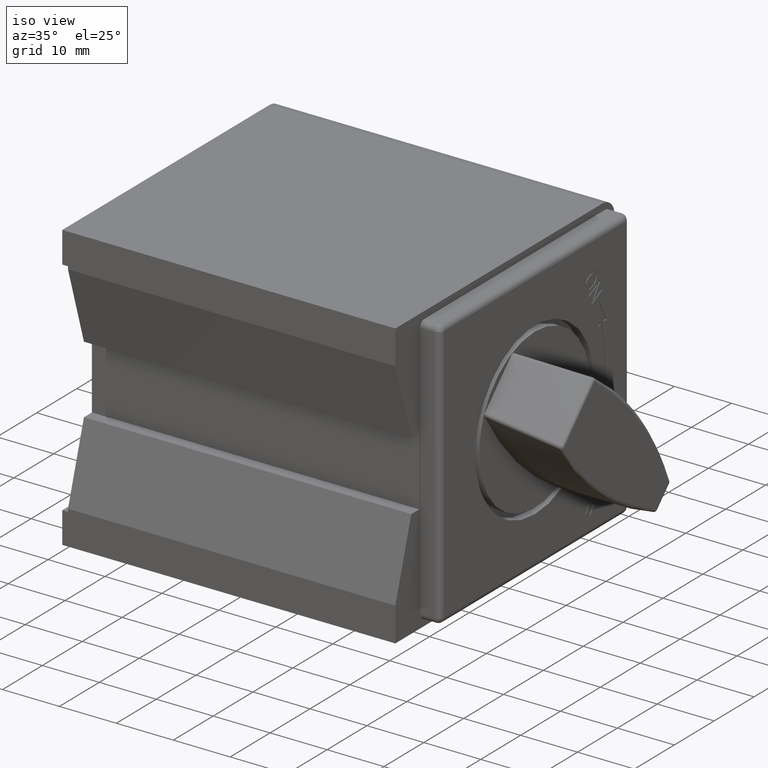
[diagram: clean part render]
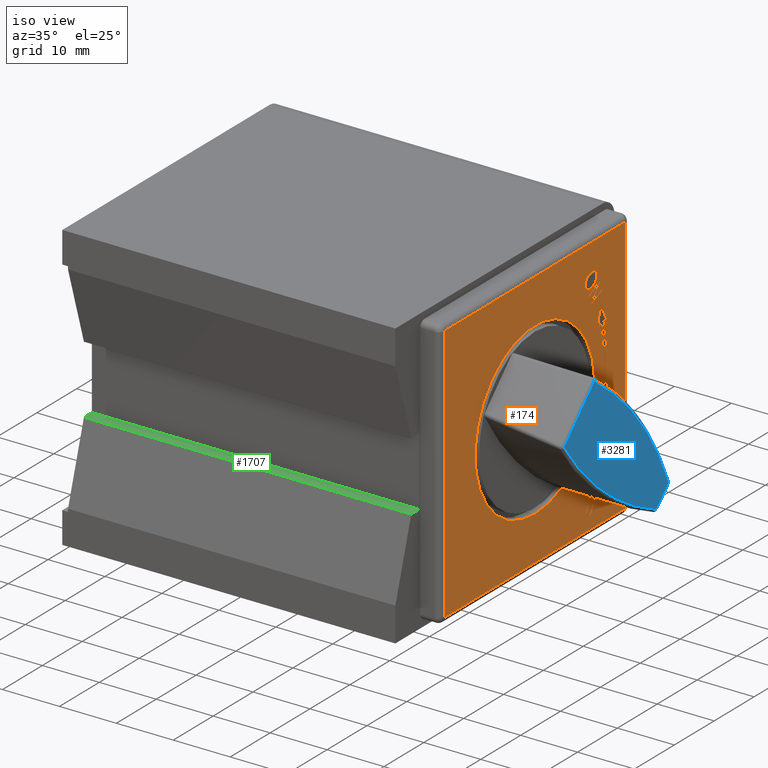
[diagram: same view with three faces highlighted in distinct colors, each labeled with its STEP entity id]
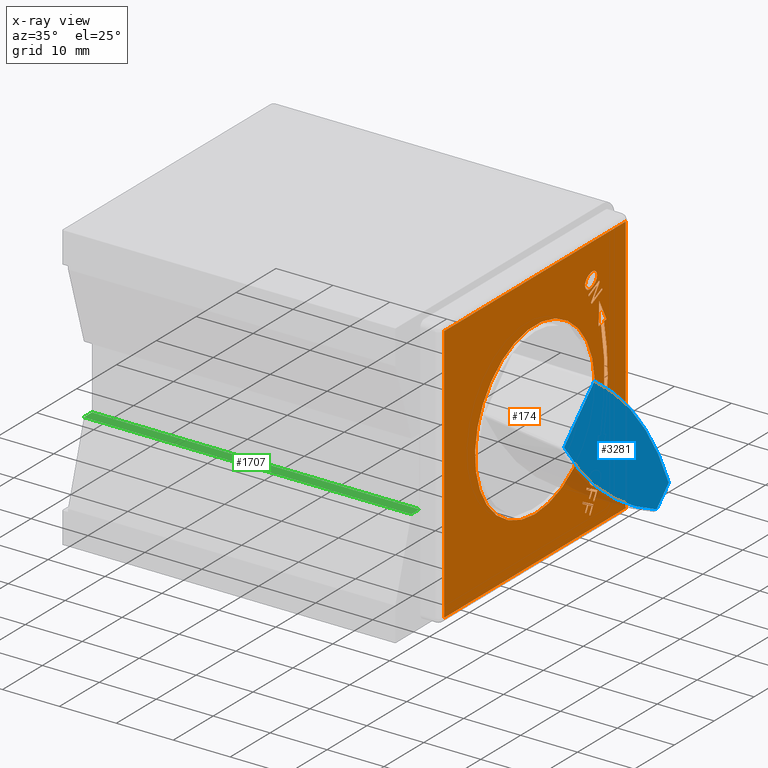
[diagram: x-ray of the same camera — body ghosted, the three highlighted faces saturated]
A machine part, iso view with three faces highlighted in distinct colors.
The next image is the same camera in x-ray (body ghosted, the three faces saturated) — at least one of them is partly hidden behind the body in this view.
Their STEP definitions:

[orange] entity #174 — the highlighted planar face has unit normal (1, 0, -0).
#9 = ORIENTED_EDGE ( 'NONE', *, *, #822, .T. ) ;
#15 = LINE ( 'NONE', #2682, #1571 ) ;
#21 = CARTESIAN_POINT ( 'NONE',  ( 32.75000000000000711, 19.07127303118679507, 8.836246859754483651 ) ) ;
#23 = EDGE_CURVE ( 'NONE', #1576, #2026, #4286, .T. ) ;
#26 = LINE ( 'NONE', #1946, #1782 ) ;
#92 = VECTOR ( 'NONE', #2271, 1000.000000000000114 ) ;
#102 = CARTESIAN_POINT ( 'NONE',  ( 32.75000000000001421, 15.22365268726104581, 17.03314405717042845 ) ) ;
#117 = PLANE ( 'NONE',  #4706 ) ;
#127 = CARTESIAN_POINT ( 'NONE',  ( 32.74999999999995737, 16.94942189594827298, 15.59500652271484533 ) ) ;
#133 = VERTEX_POINT ( 'NONE', #3232 ) ;
#134 = CARTESIAN_POINT ( 'NONE',  ( 32.75000000000000711, 17.07473961681739283, -16.09429775203857815 ) ) ;
#136 = VECTOR ( 'NONE', #224, 1000.000000000000114 ) ;
#173 = CARTESIAN_POINT ( 'NONE',  ( 32.75000000000000711, 15.18520206071041301, 16.07511658851158742 ) ) ;
#174 = ADVANCED_FACE ( 'NONE', ( #890, #4380, #2043, #2992, #4937, #2893, #4038, #4059 ), #117, .T. ) ;
#175 = CARTESIAN_POINT ( 'NONE',  ( 32.75000000000000711, 18.48438447074651947, -8.711499845263839248 ) ) ;
#180 = CARTESIAN_POINT ( 'NONE',  ( 32.74999999999997158, 18.62861940056103549, -16.18677945810846097 ) ) ;
#188 = LINE ( 'NONE', #1753, #4501 ) ;
#197 = CARTESIAN_POINT ( 'NONE',  ( 32.75000000000000711, 20.44067967221413085, 9.127323226899337172 ) ) ;
#204 = CARTESIAN_POINT ( 'NONE',  ( 32.75000000000000711, 25.24999999999999645, 22.75000000000000355 ) ) ;
#206 = VERTEX_POINT ( 'NONE', #4072 ) ;
#207 = CARTESIAN_POINT ( 'NONE',  ( 32.75000000000000711, 18.63707842668865666, 15.93190117401046102 ) ) ;
#210 = CARTESIAN_POINT ( 'NONE',  ( 32.74999999999990763, 16.57520804880973486, -15.74623408410115033 ) ) ;
#224 = DIRECTION ( 'NONE',  ( 0.000000000000000000, -0.4456328685321734318, -0.8952158100054905532 ) ) ;
#225 = ORIENTED_EDGE ( 'NONE', *, *, #3231, .T. ) ;
#227 = CARTESIAN_POINT ( 'NONE',  ( 32.74999999999997158, 16.80148988799568599, 15.54197758061284773 ) ) ;
#240 = ORIENTED_EDGE ( 'NONE', *, *, #1325, .T. ) ;
#243 = VECTOR ( 'NONE', #1652, 1000.000000000000114 ) ;
#249 = VERTEX_POINT ( 'NONE', #1004 ) ;
#254 = CARTESIAN_POINT ( 'NONE',  ( 32.75000000000000711, 16.36236963634103958, -17.90056595621777547 ) ) ;
#264 = VERTEX_POINT ( 'NONE', #3697 ) ;
#271 = VERTEX_POINT ( 'NONE', #3670 ) ;
#272 = CARTESIAN_POINT ( 'NONE',  ( 32.74999999999998579, 16.16062368423702722, -15.06575837576326471 ) ) ;
#275 = EDGE_CURVE ( 'NONE', #1211, #2883, #3153, .T. ) ;
#283 = VERTEX_POINT ( 'NONE', #648 ) ;
#287 = CARTESIAN_POINT ( 'NONE',  ( 32.75000000000000711, 20.44067967221413440, -9.127323226899344277 ) ) ;
#296 = CARTESIAN_POINT ( 'NONE',  ( 32.75000000000000711, 18.99965844798622783, -15.78747957022039472 ) ) ;
#297 = LINE ( 'NONE', #4573, #663 ) ;
#301 = ORIENTED_EDGE ( 'NONE', *, *, #23, .T. ) ;
#304 = CARTESIAN_POINT ( 'NONE',  ( 32.74999999999995737, 17.52155836444078219, 17.89943878399295585 ) ) ;
#308 = ORIENTED_EDGE ( 'NONE', *, *, #747, .T. ) ;
#314 = CARTESIAN_POINT ( 'NONE',  ( 32.75000000000000711, 19.07127303118679862, 8.836246859754483651 ) ) ;
#318 = CARTESIAN_POINT ( 'NONE',  ( 32.75000000000000711, 17.08995877266155006, -13.77794223255805939 ) ) ;
#329 = CARTESIAN_POINT ( 'NONE',  ( 32.74999999999997158, 16.23144534054584653, 17.86460093884930345 ) ) ;
#336 = ORIENTED_EDGE ( 'NONE', *, *, #4315, .F. ) ;
#339 = CARTESIAN_POINT ( 'NONE',  ( 32.75000000000001421, 16.01869336690451817, 17.76748061094893671 ) ) ;
#349 = VECTOR ( 'NONE', #3323, 1000.000000000000000 ) ;
#355 = CARTESIAN_POINT ( 'NONE',  ( 32.74999999999997868, 17.97953827437243746, -16.35304476518964378 ) ) ;
#375 = CARTESIAN_POINT ( 'NONE',  ( 32.74999999999993605, 17.72592333398952036, 16.08618440817487638 ) ) ;
#385 = CARTESIAN_POINT ( 'NONE',  ( 32.74999999999997868, 17.22014887089494906, -13.76444247780191965 ) ) ;
#389 = CARTESIAN_POINT ( 'NONE',  ( 32.75000000000000711, 25.24999999999999645, -5.001481684947869569E-15 ) ) ;
#390 = ORIENTED_EDGE ( 'NONE', *, *, #456, .T. ) ;
#400 = LINE ( 'NONE', #5045, #1636 ) ;
#412 = CARTESIAN_POINT ( 'NONE',  ( 32.75000000000000711, 16.25960162980440771, -14.32826690788273361 ) ) ;
#418 = CARTESIAN_POINT ( 'NONE',  ( 32.75000000000001421, 15.58187673159786968, 17.48354382861877454 ) ) ;
#429 = CARTESIAN_POINT ( 'NONE',  ( 32.74999999999992184, 16.70305170731575117, -13.88489431929517792 ) ) ;
#430 = ORIENTED_EDGE ( 'NONE', *, *, #4192, .T. ) ;
#436 = LINE ( 'NONE', #4736, #3351 ) ;
#443 = CARTESIAN_POINT ( 'NONE',  ( 32.75000000000000711, 15.91645219255773824, -18.73912128145343914 ) ) ;
#445 = CARTESIAN_POINT ( 'NONE',  ( 32.75000000000000711, 15.60354634840189547, -18.57292809963525571 ) ) ;
#452 = CARTESIAN_POINT ( 'NONE',  ( 32.75000000000001421, 15.16775519151560836, 16.11614796042911379 ) ) ;
#453 = LINE ( 'NONE', #4321, #3124 ) ;
#456 = EDGE_CURVE ( 'NONE', #4157, #2418, #1198, .T. ) ;
#476 = VECTOR ( 'NONE', #1439, 1000.000000000000114 ) ;
#484 = VECTOR ( 'NONE', #601, 1000.000000000000227 ) ;
#491 = EDGE_CURVE ( 'NONE', #4859, #1434, #453, .T. ) ;
#505 = LINE ( 'NONE', #1726, #484 ) ;
#508 = LINE ( 'NONE', #1348, #349 ) ;
#520 = DIRECTION ( 'NONE',  ( 0.000000000000000000, 0.4691663488491105150, 0.8831098103336836314 ) ) ;
#529 = VERTEX_POINT ( 'NONE', #4460 ) ;
#538 = CARTESIAN_POINT ( 'NONE',  ( 32.75000000000003553, 15.84392871465476915, 15.50483212721571569 ) ) ;
#540 = CARTESIAN_POINT ( 'NONE',  ( 32.74999999999995737, 16.02135072375297753, 15.46856531713889638 ) ) ;
#542 = CARTESIAN_POINT ( 'NONE',  ( 32.75000000000000711, 16.03642907603930468, 14.37285084933513346 ) ) ;
#549 = EDGE_CURVE ( 'NONE', #3647, #3647, #2864, .T. ) ;
#566 = CARTESIAN_POINT ( 'NONE',  ( 32.75000000000000711, 15.90371803707826892, 14.65775344673773262 ) ) ;
#571 = VECTOR ( 'NONE', #2817, 999.9999999999998863 ) ;
#592 = CARTESIAN_POINT ( 'NONE',  ( 32.74999999999995737, 16.51484233521297540, 15.47161842076568661 ) ) ;
#595 = DIRECTION ( 'NONE',  ( 0.000000000000000000, 0.8829475463178224626, -0.4694716503169671373 ) ) ;
#596 = ORIENTED_EDGE ( 'NONE', *, *, #3675, .T. ) ;
#601 = DIRECTION ( 'NONE',  ( 0.000000000000000000, 0.9063801113541216647, 0.4224631270793818283 ) ) ;
#612 = CARTESIAN_POINT ( 'NONE',  ( 32.75000000000000711, 15.38773489608129807, -16.07548478738661046 ) ) ;
#616 = CARTESIAN_POINT ( 'NONE',  ( 32.74999999999995737, 17.04688427261557493, 15.63877280036407669 ) ) ;
#621 = CARTESIAN_POINT ( 'NONE',  ( 32.74999999999997868, 18.24571478507821354, -16.33213010479392580 ) ) ;
#624 = EDGE_LOOP ( 'NONE', ( #3912, #4021, #1822, #4271, #3192, #969, #2431, #3147, #430, #301 ) ) ;
#648 = CARTESIAN_POINT ( 'NONE',  ( 32.75000000000000711, 17.09897677919818193, -18.49593933284115366 ) ) ;
#651 = DIRECTION ( 'NONE',  ( 0.000000000000000000, 0.9781476007338065770, -0.2079116908177548739 ) ) ;
#663 = VECTOR ( 'NONE', #651, 1000.000000000000114 ) ;
#668 = VECTOR ( 'NONE', #2104, 1000.000000000000114 ) ;
#675 = CARTESIAN_POINT ( 'NONE',  ( 32.75000000000000711, 18.18988587010727898, -17.19683218998401486 ) ) ;
#689 = CARTESIAN_POINT ( 'NONE',  ( 32.74999999999999289, 16.20203724800686729, -14.44564203663153279 ) ) ;
#700 = DIRECTION ( 'NONE',  ( 0.000000000000000000, 0.4695199025468768106, 0.8829218884546758961 ) ) ;
#701 = VERTEX_POINT ( 'NONE', #3359 ) ;
#709 = CARTESIAN_POINT ( 'NONE',  ( 32.75000000000000711, 18.14738572071349765, -13.99892437541520174 ) ) ;
#718 = VERTEX_POINT ( 'NONE', #3445 ) ;
#720 = EDGE_CURVE ( 'NONE', #3504, #249, #4889, .T. ) ;
#723 = VERTEX_POINT ( 'NONE', #5016 ) ;
#724 = EDGE_CURVE ( 'NONE', #2672, #2221, #1499, .T. ) ;
#747 = EDGE_CURVE ( 'NONE', #2829, #723, #4095, .T. ) ;
#772 = CARTESIAN_POINT ( 'NONE',  ( 32.75000000000000711, 17.61574996940841942, -13.79967036143425041 ) ) ;
#776 = LINE ( 'NONE', #4330, #2051 ) ;
#780 = EDGE_CURVE ( 'NONE', #283, #1725, #975, .T. ) ;
#781 = B_SPLINE_CURVE_WITH_KNOTS ( 'NONE', 3,
 ( #4701, #3440, #5012, #3473, #4619, #418, #1978, #1275, #3167, #339, #4287 ),
 .UNSPECIFIED., .F., .F.,
 ( 4, 1, 1, 1, 1, 1, 1, 1, 4 ),
 ( 0.000000000000000000, 0.0001321316597401639068, 0.0002646160130339305044, 0.0003981304015859542808, 0.0005328200798468814238, 0.0006712683424282005250, 0.0008129068784468252221, 0.0009586434091617796697, 0.001109504278435694078 ),
 .UNSPECIFIED. ) ;
#797 = CARTESIAN_POINT ( 'NONE',  ( 32.75000000000000711, 18.01413874902209855, 17.39187795214795074 ) ) ;
#800 = ORIENTED_EDGE ( 'NONE', *, *, #844, .T. ) ;
#811 = CARTESIAN_POINT ( 'NONE',  ( 32.74999999999995026, 17.13279654331848434, 15.67850741541281323 ) ) ;
#817 = LINE ( 'NONE', #2373, #571 ) ;
#818 = EDGE_CURVE ( 'NONE', #976, #3129, #4952, .T. ) ;
#822 = EDGE_CURVE ( 'NONE', #723, #4995, #2145, .T. ) ;
#824 = DIRECTION ( 'NONE',  ( -1.460819769243627131E-16, 0.000000000000000000, -1.000000000000000000 ) ) ;
#829 = VECTOR ( 'NONE', #4776, 1000.000000000000114 ) ;
#830 = EDGE_CURVE ( 'NONE', #2202, #1058, #2590, .T. ) ;
#839 = CARTESIAN_POINT ( 'NONE',  ( 32.74999999999991473, 16.32461576325148656, -14.21415022869926759 ) ) ;
#844 = EDGE_CURVE ( 'NONE', #3176, #2278, #4596, .T. ) ;
#884 = CARTESIAN_POINT ( 'NONE',  ( 32.75000000000000711, 16.11125738736293300, -20.35356933340148800 ) ) ;
#890 = FACE_OUTER_BOUND ( 'NONE', #4503, .T. ) ;
#895 = ORIENTED_EDGE ( 'NONE', *, *, #2165, .T. ) ;
#896 = CIRCLE ( 'NONE', #4170, 42.49999999999999289 ) ;
#897 = VERTEX_POINT ( 'NONE', #3933 ) ;
#909 = B_SPLINE_CURVE_WITH_KNOTS ( 'NONE', 3,
 ( #2535, #1668, #538, #4027, #4412, #2147, #3310, #951, #2098, #3717, #173 ),
 .UNSPECIFIED., .F., .F.,
 ( 4, 1, 1, 1, 1, 1, 1, 1, 4 ),
 ( 0.000000000000000000, 0.0001402062494030924494, 0.0002739615361866799912, 0.0004021298279870700590, 0.0005278864595012580955, 0.0006522277015732204320, 0.0007777242548058125541, 0.0009063810633173558558, 0.001039522164773550245 ),
 .UNSPECIFIED. ) ;
#933 = CARTESIAN_POINT ( 'NONE',  ( 32.75000000000000711, 16.36236963634103958, -17.90056595621777547 ) ) ;
#951 = CARTESIAN_POINT ( 'NONE',  ( 32.75000000000002132, 15.31835154637944463, 15.85216574770536013 ) ) ;
#957 = CARTESIAN_POINT ( 'NONE',  ( 32.74999999999999289, 18.96054330686108358, -15.85718290544822473 ) ) ;
#967 = VERTEX_POINT ( 'NONE', #2579 ) ;
#969 = ORIENTED_EDGE ( 'NONE', *, *, #4122, .T. ) ;
#975 = LINE ( 'NONE', #1821, #4151 ) ;
#976 = VERTEX_POINT ( 'NONE', #4943 ) ;
#984 = CARTESIAN_POINT ( 'NONE',  ( 32.74999999999997868, 18.32837392744010430, -16.31407201240590865 ) ) ;
#985 = EDGE_CURVE ( 'NONE', #967, #1260, #1751, .T. ) ;
#993 = ORIENTED_EDGE ( 'NONE', *, *, #720, .T. ) ;
#1000 = DIRECTION ( 'NONE',  ( 0.000000000000000000, -0.9781476007338065770, -0.2079116908177548739 ) ) ;
#1004 = CARTESIAN_POINT ( 'NONE',  ( 32.75000000000000711, 15.54053522075662563, -15.78814712504894580 ) ) ;
#1006 = B_SPLINE_CURVE_WITH_KNOTS ( 'NONE', 3,
 ( #134, #3728, #4853, #2447, #3229, #210, #4492, #1749, #1368, #4398, #3636 ),
 .UNSPECIFIED., .F., .F.,
 ( 4, 1, 1, 1, 1, 1, 1, 1, 4 ),
 ( 0.000000000000000000, 0.0001632645642404131415, 0.0003195072304829477388, 0.0004692423434184236669, 0.0006126814239836901816, 0.0007515197102200611191, 0.0008862562102475983906, 0.001018323458412880586, 0.001148481384523565357 ),
 .UNSPECIFIED. ) ;
#1010 = CARTESIAN_POINT ( 'NONE',  ( 32.74999999999994316, 18.97364483664771484, -14.72773318822674327 ) ) ;
#1013 = CARTESIAN_POINT ( 'NONE',  ( 32.75000000000000711, 15.06174440034994610, -19.59200277495992992 ) ) ;
#1040 = DIRECTION ( 'NONE',  ( 1.000000000000000000, 1.066997199106502070E-32, -1.460819769243627131E-16 ) ) ;
#1058 = VERTEX_POINT ( 'NONE', #4786 ) ;
#1061 = VERTEX_POINT ( 'NONE', #3203 ) ;
#1066 = AXIS2_PLACEMENT_3D ( 'NONE', #4003, #3694, #2903 ) ;
#1094 = CARTESIAN_POINT ( 'NONE',  ( 32.75000000000001421, 15.97842446330781385, 15.47548184825184414 ) ) ;
#1096 = CARTESIAN_POINT ( 'NONE',  ( 32.74999999999994316, 18.81038620342441092, -14.49739504905537579 ) ) ;
#1106 = VERTEX_POINT ( 'NONE', #204 ) ;
#1124 = CARTESIAN_POINT ( 'NONE',  ( 32.74999999999997868, 17.69099997546396352, -16.32416794542055882 ) ) ;
#1125 = CARTESIAN_POINT ( 'NONE',  ( 32.75000000000000711, 14.40001550424604915, -17.93311478794694480 ) ) ;
#1138 = CARTESIAN_POINT ( 'NONE',  ( 32.75000000000000711, 16.04946379218519681, -17.73437277439959558 ) ) ;
#1142 = ORIENTED_EDGE ( 'NONE', *, *, #3573, .T. ) ;
#1152 = CARTESIAN_POINT ( 'NONE',  ( 32.75000000000000000, 18.01569776686307733, -13.93221045723192653 ) ) ;
#1156 = VECTOR ( 'NONE', #4717, 1000.000000000000000 ) ;
#1162 = VECTOR ( 'NONE', #1964, 1000.000000000000227 ) ;
#1174 = CARTESIAN_POINT ( 'NONE',  ( 32.74999999999994316, 18.06085802413406682, 16.61258456008574314 ) ) ;
#1180 = CARTESIAN_POINT ( 'NONE',  ( 32.75000000000000711, -20.25000000000000000, 22.74999999999999645 ) ) ;
#1187 = EDGE_CURVE ( 'NONE', #1760, #4928, #1273, .T. ) ;
#1198 = B_SPLINE_CURVE_WITH_KNOTS ( 'NONE', 3,
 ( #3891, #5047, #839, #1531, #2740, #5073, #429, #1603, #3101, #1988, #3563 ),
 .UNSPECIFIED., .F., .F.,
 ( 4, 1, 1, 1, 1, 1, 1, 1, 4 ),
 ( 0.000000000000000000, 0.0001334274789124109033, 0.0002613294352321554690, 0.0003869884717753711042, 0.0005116897148188392789, 0.0006372775042945722510, 0.0007662248556591561878, 0.0009009415860903956632, 0.001042198708322209953 ),
 .UNSPECIFIED. ) ;
#1199 = CARTESIAN_POINT ( 'NONE',  ( 32.74999999999993605, 18.11527800077454486, 16.93198999463615451 ) ) ;
#1200 = CARTESIAN_POINT ( 'NONE',  ( 32.75000000000002132, 15.08310695466656171, 16.57313279184252863 ) ) ;
#1211 = VERTEX_POINT ( 'NONE', #2662 ) ;
#1218 = EDGE_LOOP ( 'NONE', ( #5068, #4244, #390, #3421, #1484, #3340 ) ) ;
#1223 = VERTEX_POINT ( 'NONE', #3020 ) ;
#1229 = CARTESIAN_POINT ( 'NONE',  ( 32.75000000000000711, 17.20216647827202294, -19.05446219054434565 ) ) ;
#1255 = LINE ( 'NONE', #389, #2723 ) ;
#1260 = VERTEX_POINT ( 'NONE', #1915 ) ;
#1268 = EDGE_CURVE ( 'NONE', #2146, #1760, #3122, .T. ) ;
#1269 = LINE ( 'NONE', #3264, #4823 ) ;
#1273 = B_SPLINE_CURVE_WITH_KNOTS ( 'NONE', 3,
 ( #2491, #4031, #957, #2514, #3265, #4076, #2131, #1316, #180, #1745, #4873, #1363, #984, #621, #4634, #3426, #355, #3751, #5049, #1124, #3459, #2685, #3870, #4545, #4993, #1831, #2210 ),
 .UNSPECIFIED., .F., .F.,
 ( 4, 1, 1, 1, 1, 1, 1, 1, 1, 1, 1, 1, 1, 1, 1, 1, 1, 1, 1, 1, 1, 1, 1, 1, 4 ),
 ( 0.000000000000000000, 8.060086409993888067E-05, 0.0001603635843737375875, 0.0002391059044681442152, 0.0003174764817184140401, 0.0003954327327244877240, 0.0004738916390875284965, 0.0005536543593613301849, 0.0006344825103246308756, 0.0007163233541527943768, 0.0007988248585185157803, 0.0008818713959506287300, 0.0009670873706862845570, 0.001053708655732523824, 0.001143344102423403874, 0.001235133979415568850, 0.001330046119243974813, 0.001427217297627121888, 0.001527005972362422900, 0.001629279346650085994, 0.001734843840984218698, 0.001843394883603306344, 0.001955427078413884360, 0.002070986220045944060, 0.002191117080232785497 ),
 .UNSPECIFIED. ) ;
#1275 = CARTESIAN_POINT ( 'NONE',  ( 32.75000000000002132, 15.80510990934532600, 17.65037590706645787 ) ) ;
#1277 = ORIENTED_EDGE ( 'NONE', *, *, #1424, .T. ) ;
#1279 = EDGE_CURVE ( 'NONE', #2221, #1106, #2419, .T. ) ;
#1290 = CARTESIAN_POINT ( 'NONE',  ( 32.74999999999995737, 16.37626585305596194, 15.45323829657355930 ) ) ;
#1305 = CARTESIAN_POINT ( 'NONE',  ( 32.75000000000000711, 16.59126574023714440, -16.71529809907491781 ) ) ;
#1315 = VECTOR ( 'NONE', #4382, 1000.000000000000000 ) ;
#1316 = CARTESIAN_POINT ( 'NONE',  ( 32.74999999999997868, 18.69420120930813667, -16.14209559747676437 ) ) ;
#1325 = EDGE_CURVE ( 'NONE', #2543, #3246, #1605, .T. ) ;
#1335 = DIRECTION ( 'NONE',  ( 0.000000000000000000, -0.8829826821614165100, 0.4694055634555591716 ) ) ;
#1348 = CARTESIAN_POINT ( 'NONE',  ( 32.75000000000000711, 16.90417158439298717, -16.88149128089309770 ) ) ;
#1359 = CARTESIAN_POINT ( 'NONE',  ( 32.75000000000001421, 17.09672803473638680, 15.66115554955054634 ) ) ;
#1363 = CARTESIAN_POINT ( 'NONE',  ( 32.74999999999998579, 18.40807345864932643, -16.29006837817549425 ) ) ;
#1368 = CARTESIAN_POINT ( 'NONE',  ( 32.74999999999990052, 16.31790378005977971, -15.43263626947996592 ) ) ;
#1378 = CARTESIAN_POINT ( 'NONE',  ( 32.75000000000000711, 18.65649881893148532, -12.71149984526383747 ) ) ;
#1424 = EDGE_CURVE ( 'NONE', #2883, #1223, #909, .T. ) ;
#1434 = VERTEX_POINT ( 'NONE', #197 ) ;
#1439 = DIRECTION ( 'NONE',  ( 0.000000000000000000, -0.04298880943380564701, 0.9990755538313726980 ) ) ;
#1444 = CARTESIAN_POINT ( 'NONE',  ( 32.74999999999996447, 18.09166295620847009, 17.16621097889631287 ) ) ;
#1455 = CARTESIAN_POINT ( 'NONE',  ( 32.74999999999998579, 16.13762457901254521, -14.69046969649313183 ) ) ;
#1464 = CARTESIAN_POINT ( 'NONE',  ( 32.75000000000000711, 20.44067967221413440, -9.127323226899344277 ) ) ;
#1484 = ORIENTED_EDGE ( 'NONE', *, *, #1268, .T. ) ;
#1485 = CARTESIAN_POINT ( 'NONE',  ( 32.75000000000000711, 16.58492745266267931, 13.19610571946500421 ) ) ;
#1486 = CARTESIAN_POINT ( 'NONE',  ( 32.74999999999995737, 17.81290684857451012, 17.69150327490497787 ) ) ;
#1497 = CARTESIAN_POINT ( 'NONE',  ( 32.75000000000000711, 16.03642907603930468, 14.37285084933513346 ) ) ;
#1499 = LINE ( 'NONE', #4478, #3994 ) ;
#1503 = CARTESIAN_POINT ( 'NONE',  ( 32.74999999999994316, 17.65365938201646401, 16.01692194667126756 ) ) ;
#1510 = EDGE_CURVE ( 'NONE', #897, #2829, #3288, .T. ) ;
#1525 = ORIENTED_EDGE ( 'NONE', *, *, #2545, .T. ) ;
#1531 = CARTESIAN_POINT ( 'NONE',  ( 32.74999999999992895, 16.40463358197690980, -14.11292881090803775 ) ) ;
#1558 = CARTESIAN_POINT ( 'NONE',  ( 32.75000000000000711, 17.07473961681739283, -16.09429775203857815 ) ) ;
#1562 = VECTOR ( 'NONE', #520, 1000.000000000000000 ) ;
#1565 = EDGE_CURVE ( 'NONE', #2639, #3504, #2486, .T. ) ;
#1571 = VECTOR ( 'NONE', #3866, 1000.000000000000227 ) ;
#1576 = VERTEX_POINT ( 'NONE', #2123 ) ;
#1579 = CARTESIAN_POINT ( 'NONE',  ( 32.74999999999994316, 18.10978836842620510, 16.85246615694335759 ) ) ;
#1581 = DIRECTION ( 'NONE',  ( 0.000000000000000000, 0.4456328685321734318, -0.8952158100054905532 ) ) ;
#1594 = DIRECTION ( 'NONE',  ( 0.000000000000000000, 0.4694380128282588660, 0.8829654308702326038 ) ) ;
#1603 = CARTESIAN_POINT ( 'NONE',  ( 32.74999999999992895, 16.82318579261311697, -13.83612275359513966 ) ) ;
#1605 = LINE ( 'NONE', #3130, #1162 ) ;
#1636 = VECTOR ( 'NONE', #3532, 1000.000000000000000 ) ;
#1646 = CARTESIAN_POINT ( 'NONE',  ( 32.75000000000000711, 15.18520206071041301, 16.07511658851158742 ) ) ;
#1652 = DIRECTION ( 'NONE',  ( 0.000000000000000000, 0.4695199025468770326, 0.8829218884546757851 ) ) ;
#1654 = DIRECTION ( 'NONE',  ( -1.632680918566407040E-16, 0.000000000000000000, -1.000000000000000000 ) ) ;
#1663 = VERTEX_POINT ( 'NONE', #4538 ) ;
#1668 = CARTESIAN_POINT ( 'NONE',  ( 32.75000000000003553, 15.93289425759070177, 15.48541765850951357 ) ) ;
#1676 = DIRECTION ( 'NONE',  ( -1.460819769243627131E-16, 0.000000000000000000, -1.000000000000000000 ) ) ;
#1704 = VECTOR ( 'NONE', #4011, 999.9999999999998863 ) ;
#1723 = CARTESIAN_POINT ( 'NONE',  ( 32.75000000000000711, 15.37465024450579065, -19.75819595677811336 ) ) ;
#1725 = VERTEX_POINT ( 'NONE', #2705 ) ;
#1726 = CARTESIAN_POINT ( 'NONE',  ( 32.75000000000000711, 17.18212712798735708, 13.44935247271176060 ) ) ;
#1745 = CARTESIAN_POINT ( 'NONE',  ( 32.74999999999998579, 18.55843415151521114, -16.22617421949849614 ) ) ;
#1749 = CARTESIAN_POINT ( 'NONE',  ( 32.74999999999990763, 16.39324382387744805, -15.54154418034084806 ) ) ;
#1751 = B_SPLINE_CURVE_WITH_KNOTS ( 'NONE', 3,
 ( #3844, #3817, #329, #2219, #1920, #3408, #2999, #4552, #2607, #3492, #4166, #304, #1865, #5001, #1486, #3061, #4613, #3988, #797 ),
 .UNSPECIFIED., .F., .F.,
 ( 4, 1, 1, 1, 1, 1, 1, 1, 1, 1, 1, 1, 1, 1, 1, 1, 4 ),
 ( 0.000000000000000000, 0.0001875444127016343064, 0.0003653702007625224987, 0.0005322997080700981806, 0.0006910288182483886399, 0.0008415451627465034149, 0.0009862372245228344034, 0.001124669560364697368, 0.001260296040201996839, 0.001391199257910908857, 0.001516796553179924336, 0.001638390771137857114, 0.001757453837195058688, 0.001874552825407854078, 0.001993126743755176816, 0.002113496866428430168, 0.002238014224916785259 ),
 .UNSPECIFIED. ) ;
#1752 = CARTESIAN_POINT ( 'NONE',  ( 32.75000000000000711, 17.18212712798735353, 13.44935247271175882 ) ) ;
#1753 = CARTESIAN_POINT ( 'NONE',  ( 32.75000000000000711, 15.37465024450579065, -19.75819595677811336 ) ) ;
#1760 = VERTEX_POINT ( 'NONE', #3558 ) ;
#1782 = VECTOR ( 'NONE', #3519, 1000.000000000000114 ) ;
#1796 = LINE ( 'NONE', #3017, #668 ) ;
#1801 = CARTESIAN_POINT ( 'NONE',  ( 32.74999999999993605, 19.05404553763640507, -15.67783537585683895 ) ) ;
#1807 = CARTESIAN_POINT ( 'NONE',  ( 32.75000000000000711, 19.45952160850684010, 14.16647909608838063 ) ) ;
#1809 = CARTESIAN_POINT ( 'NONE',  ( 32.74999999999998579, 16.23800625418181198, -15.27485542489325709 ) ) ;
#1821 = CARTESIAN_POINT ( 'NONE',  ( 32.75000000000000711, 17.09897677919818193, -18.49593933284115366 ) ) ;
#1822 = ORIENTED_EDGE ( 'NONE', *, *, #3845, .T. ) ;
#1831 = CARTESIAN_POINT ( 'NONE',  ( 32.74999999999997158, 17.11008051213288184, -16.11270505740101910 ) ) ;
#1838 = ORIENTED_EDGE ( 'NONE', *, *, #2519, .T. ) ;
#1843 = EDGE_CURVE ( 'NONE', #3457, #2122, #2759, .T. ) ;
#1864 = CARTESIAN_POINT ( 'NONE',  ( 32.74999999999997868, 16.20057723349435008, -15.19271637470313507 ) ) ;
#1865 = CARTESIAN_POINT ( 'NONE',  ( 32.74999999999997158, 17.62795816861130760, 17.83967272467997489 ) ) ;
#1868 = ORIENTED_EDGE ( 'NONE', *, *, #549, .T. ) ;
#1897 = VECTOR ( 'NONE', #2596, 1000.000000000000114 ) ;
#1915 = CARTESIAN_POINT ( 'NONE',  ( 32.75000000000000711, 18.01413874902209855, 17.39187795214795074 ) ) ;
#1920 = CARTESIAN_POINT ( 'NONE',  ( 32.74999999999996447, 16.55902976356230027, 17.97116912494028185 ) ) ;
#1938 = CARTESIAN_POINT ( 'NONE',  ( 32.75000000000000711, 14.40001550424604915, -17.93311478794694480 ) ) ;
#1941 = CARTESIAN_POINT ( 'NONE',  ( 32.74999999999998579, 17.48354696017264587, -13.77655100510992092 ) ) ;
#1946 = CARTESIAN_POINT ( 'NONE',  ( 32.75000000000000711, 16.73706907567462210, -19.17560667106382866 ) ) ;
#1947 = VERTEX_POINT ( 'NONE', #2725 ) ;
#1964 = DIRECTION ( 'NONE',  ( 0.000000000000000000, -0.5909825127212691154, -0.8066843680508845038 ) ) ;
#1976 = ORIENTED_EDGE ( 'NONE', *, *, #2939, .T. ) ;
#1978 = CARTESIAN_POINT ( 'NONE',  ( 32.75000000000001421, 15.68914805375680821, 17.56973540146622881 ) ) ;
#1986 = CARTESIAN_POINT ( 'NONE',  ( 32.74999999999993605, 17.99597468779149523, 16.45706733448834314 ) ) ;
#1987 = CARTESIAN_POINT ( 'NONE',  ( 32.75000000000000711, 15.24607868408703659, 17.07471074435574465 ) ) ;
#1988 = CARTESIAN_POINT ( 'NONE',  ( 32.74999999999992184, 17.04346412381878295, -13.78475252543875840 ) ) ;
#1990 = DIRECTION ( 'NONE',  ( 1.066997199106502070E-32, 1.000000000000000000, 1.460819769243627131E-16 ) ) ;
#2000 = LINE ( 'NONE', #1229, #4269 ) ;
#2026 = VERTEX_POINT ( 'NONE', #1723 ) ;
#2030 = EDGE_CURVE ( 'NONE', #3095, #1947, #2442, .T. ) ;
#2043 = FACE_BOUND ( 'NONE', #624, .T. ) ;
#2048 = LINE ( 'NONE', #445, #1315 ) ;
#2051 = VECTOR ( 'NONE', #2331, 1000.000000000000227 ) ;
#2055 = CARTESIAN_POINT ( 'NONE',  ( 32.75000000000001421, 15.08229158957963101, 16.44729125642667356 ) ) ;
#2058 = VECTOR ( 'NONE', #595, 1000.000000000000000 ) ;
#2073 = CARTESIAN_POINT ( 'NONE',  ( 32.75000000000001421, 15.09780569724415855, 16.69947877492450417 ) ) ;
#2098 = CARTESIAN_POINT ( 'NONE',  ( 32.75000000000004263, 15.24447986759128071, 15.95798059586885742 ) ) ;
#2104 = DIRECTION ( 'NONE',  ( 0.000000000000000000, -0.8827812917244591828, 0.4697841961808585376 ) ) ;
#2122 = VERTEX_POINT ( 'NONE', #207 ) ;
#2123 = CARTESIAN_POINT ( 'NONE',  ( 32.75000000000000711, 15.91645219255773824, -18.73912128145343914 ) ) ;
#2131 = CARTESIAN_POINT ( 'NONE',  ( 32.74999999999997868, 18.75605184143855553, -16.09395959861831926 ) ) ;
#2136 = CARTESIAN_POINT ( 'NONE',  ( 32.75000000000000711, 25.24999999999999645, -22.74999999999999289 ) ) ;
#2145 = LINE ( 'NONE', #1378, #476 ) ;
#2146 = VERTEX_POINT ( 'NONE', #3403 ) ;
#2147 = CARTESIAN_POINT ( 'NONE',  ( 32.75000000000002842, 15.49680619454830399, 15.67629669305939011 ) ) ;
#2161 = ORIENTED_EDGE ( 'NONE', *, *, #780, .T. ) ;
#2162 = EDGE_CURVE ( 'NONE', #718, #4438, #436, .T. ) ;
#2165 = EDGE_CURVE ( 'NONE', #3129, #718, #3132, .T. ) ;
#2170 = DIRECTION ( 'NONE',  ( 1.460819769243627131E-16, 0.000000000000000000, 1.000000000000000000 ) ) ;
#2180 = CARTESIAN_POINT ( 'NONE',  ( 32.74999999999994316, 19.11685024339531580, -15.44821860354824139 ) ) ;
#2193 = ORIENTED_EDGE ( 'NONE', *, *, #830, .T. ) ;
#2202 = VERTEX_POINT ( 'NONE', #21 ) ;
#2205 = CARTESIAN_POINT ( 'NONE',  ( 32.74999999999995026, 18.04685856546160139, 17.31840899690093494 ) ) ;
#2210 = CARTESIAN_POINT ( 'NONE',  ( 32.75000000000000711, 17.07473961681739283, -16.09429775203857815 ) ) ;
#2218 = CARTESIAN_POINT ( 'NONE',  ( 32.74999999999998579, 16.13718300839219921, -14.93960233048155750 ) ) ;
#2219 = CARTESIAN_POINT ( 'NONE',  ( 32.74999999999995737, 16.39812060512397096, 17.92454949424400823 ) ) ;
#2221 = VERTEX_POINT ( 'NONE', #1180 ) ;
#2240 = CARTESIAN_POINT ( 'NONE',  ( 32.74999999999995026, 19.09232039056344732, -15.56361357549655011 ) ) ;
#2245 = CARTESIAN_POINT ( 'NONE',  ( 32.74999999999999289, 16.24019460022354622, -14.36783829776922694 ) ) ;
#2252 = EDGE_CURVE ( 'NONE', #1061, #2202, #896, .T. ) ;
#2268 = CARTESIAN_POINT ( 'NONE',  ( 32.74999999999994316, 18.20182269032577338, -14.02879683422305135 ) ) ;
#2271 = DIRECTION ( 'NONE',  ( 0.000000000000000000, -0.8828781667800436050, 0.4696021109653464309 ) ) ;
#2273 = EDGE_CURVE ( 'NONE', #1434, #3723, #1269, .T. ) ;
#2278 = VERTEX_POINT ( 'NONE', #4392 ) ;
#2284 = ORIENTED_EDGE ( 'NONE', *, *, #4281, .T. ) ;
#2289 = CARTESIAN_POINT ( 'NONE',  ( 32.74999999999995026, 18.03117271988982040, 16.53445042498172413 ) ) ;
#2293 = CARTESIAN_POINT ( 'NONE',  ( 32.74999999999994316, 18.45469553228951298, -14.18448752776400212 ) ) ;
#2311 = DIRECTION ( 'NONE',  ( 0.000000000000000000, -0.4222491456258128384, 0.9064798172150723143 ) ) ;
#2326 = CARTESIAN_POINT ( 'NONE',  ( 32.75000000000000711, 18.14738572071349765, -13.99892437541520174 ) ) ;
#2331 = DIRECTION ( 'NONE',  ( 0.000000000000000000, -0.8827812917244631796, 0.4697841961808508771 ) ) ;
#2337 = CARTESIAN_POINT ( 'NONE',  ( 32.75000000000000711, 19.85379111177385525, 9.002576212408689216 ) ) ;
#2340 = EDGE_CURVE ( 'NONE', #701, #264, #4825, .T. ) ;
#2358 = DIRECTION ( 'NONE',  ( 0.000000000000000000, -0.4694380128282588660, -0.8829654308702326038 ) ) ;
#2359 = VECTOR ( 'NONE', #2952, 1000.000000000000114 ) ;
#2371 = ORIENTED_EDGE ( 'NONE', *, *, #4154, .F. ) ;
#2373 = CARTESIAN_POINT ( 'NONE',  ( 32.75000000000000711, 15.54053522075662563, -15.78814712504894580 ) ) ;
#2406 = DIRECTION ( 'NONE',  ( 0.000000000000000000, -0.4692356966560308762, -0.8830729646998198845 ) ) ;
#2418 = VERTEX_POINT ( 'NONE', #318 ) ;
#2419 = LINE ( 'NONE', #3893, #4328 ) ;
#2431 = ORIENTED_EDGE ( 'NONE', *, *, #3482, .T. ) ;
#2442 = LINE ( 'NONE', #2934, #1704 ) ;
#2447 = CARTESIAN_POINT ( 'NONE',  ( 32.74999999999989342, 16.80354213748124437, -15.93052870767466445 ) ) ;
#2454 = VECTOR ( 'NONE', #1335, 1000.000000000000000 ) ;
#2486 = LINE ( 'NONE', #4048, #2454 ) ;
#2490 = CARTESIAN_POINT ( 'NONE',  ( 32.75000000000000711, 14.55281582892137671, -17.64577712560928191 ) ) ;
#2491 = CARTESIAN_POINT ( 'NONE',  ( 32.75000000000000711, 18.99965844798622783, -15.78747957022039472 ) ) ;
#2514 = CARTESIAN_POINT ( 'NONE',  ( 32.74999999999996447, 18.91625626194689502, -15.92312344667850432 ) ) ;
#2519 = EDGE_CURVE ( 'NONE', #1260, #1211, #4399, .T. ) ;
#2520 = VECTOR ( 'NONE', #4877, 1000.000000000000000 ) ;
#2534 = EDGE_LOOP ( 'NONE', ( #4707, #3325, #4227, #596, #4090, #1525, #240, #2284, #4316, #895 ) ) ;
#2535 = CARTESIAN_POINT ( 'NONE',  ( 32.75000000000001421, 15.97842446330781385, 15.47548184825184414 ) ) ;
#2543 = VERTEX_POINT ( 'NONE', #5069 ) ;
#2545 = EDGE_CURVE ( 'NONE', #2122, #2543, #400, .T. ) ;
#2548 = LINE ( 'NONE', #4852, #4091 ) ;
#2572 = CARTESIAN_POINT ( 'NONE',  ( 32.74999999999993605, 19.03155016764879903, -14.84906074778987950 ) ) ;
#2579 = CARTESIAN_POINT ( 'NONE',  ( 32.75000000000000711, 16.06365173603508723, 17.78940230279729917 ) ) ;
#2582 = ORIENTED_EDGE ( 'NONE', *, *, #3217, .T. ) ;
#2590 = LINE ( 'NONE', #314, #3334 ) ;
#2596 = DIRECTION ( 'NONE',  ( 0.000000000000000000, -0.8831602083708930406, 0.4690714725393999029 ) ) ;
#2599 = CARTESIAN_POINT ( 'NONE',  ( 32.74999999999995026, 19.07574268013576813, -14.97115815620879609 ) ) ;
#2607 = CARTESIAN_POINT ( 'NONE',  ( 32.74999999999996447, 17.14790498505249161, 18.01186523778413573 ) ) ;
#2616 = DIRECTION ( 'NONE',  ( -1.000000000000000000, -1.066997199106502207E-32, 1.460819769243627377E-16 ) ) ;
#2620 = DIRECTION ( 'NONE',  ( 0.000000000000000000, 0.4691663488491115142, 0.8831098103336831873 ) ) ;
#2639 = VERTEX_POINT ( 'NONE', #1305 ) ;
#2647 = ORIENTED_EDGE ( 'NONE', *, *, #2933, .T. ) ;
#2658 = VECTOR ( 'NONE', #2358, 1000.000000000000000 ) ;
#2662 = CARTESIAN_POINT ( 'NONE',  ( 32.75000000000001421, 17.09672803473638680, 15.66115554955054634 ) ) ;
#2665 = CARTESIAN_POINT ( 'NONE',  ( 32.75000000000000711, 17.72478846750987458, -17.31797667050348721 ) ) ;
#2672 = VERTEX_POINT ( 'NONE', #4795 ) ;
#2682 = CARTESIAN_POINT ( 'NONE',  ( 32.75000000000000711, 18.18415634876657805, 15.37427130388058849 ) ) ;
#2685 = CARTESIAN_POINT ( 'NONE',  ( 32.74999999999998579, 17.49053911917947346, -16.27261388856294744 ) ) ;
#2705 = CARTESIAN_POINT ( 'NONE',  ( 32.75000000000000711, 17.72478846750987458, -17.31797667050348721 ) ) ;
#2719 = CARTESIAN_POINT ( 'NONE',  ( 32.74999999999998579, 18.10301139615352994, -13.97644407276356837 ) ) ;
#2723 = VECTOR ( 'NONE', #824, 1000.000000000000000 ) ;
#2725 = CARTESIAN_POINT ( 'NONE',  ( 32.75000000000000711, 15.60354634840189547, -18.57292809963525571 ) ) ;
#2738 = CARTESIAN_POINT ( 'NONE',  ( 32.74999999999995026, 17.90680253891988727, 16.30505871224704961 ) ) ;
#2740 = CARTESIAN_POINT ( 'NONE',  ( 32.74999999999992895, 16.49355121878292252, -14.02359958948374263 ) ) ;
#2759 = LINE ( 'NONE', #4384, #829 ) ;
#2780 = ORIENTED_EDGE ( 'NONE', *, *, #1279, .F. ) ;
#2782 = EDGE_CURVE ( 'NONE', #1058, #4859, #4815, .T. ) ;
#2796 = VECTOR ( 'NONE', #1594, 1000.000000000000000 ) ;
#2811 = ORIENTED_EDGE ( 'NONE', *, *, #2273, .T. ) ;
#2817 = DIRECTION ( 'NONE',  ( 0.000000000000000000, 0.8829475463178223515, -0.4694716503169675814 ) ) ;
#2829 = VERTEX_POINT ( 'NONE', #1464 ) ;
#2843 = ORIENTED_EDGE ( 'NONE', *, *, #1565, .T. ) ;
#2846 = VERTEX_POINT ( 'NONE', #4920 ) ;
#2854 = CARTESIAN_POINT ( 'NONE',  ( 32.75000000000000711, 15.10015805037056680, 16.32192652956639378 ) ) ;
#2856 = ORIENTED_EDGE ( 'NONE', *, *, #2252, .T. ) ;
#2859 = CARTESIAN_POINT ( 'NONE',  ( 32.74999999999996447, 16.10783808084120494, 15.45462996637751907 ) ) ;
#2864 = CIRCLE ( 'NONE', #1066, 15.00000000000000000 ) ;
#2883 = VERTEX_POINT ( 'NONE', #4533 ) ;
#2893 = FACE_BOUND ( 'NONE', #4018, .T. ) ;
#2903 = DIRECTION ( 'NONE',  ( 0.000000000000000000, 0.000000000000000000, -1.000000000000000000 ) ) ;
#2933 = EDGE_CURVE ( 'NONE', #206, #2639, #4645, .T. ) ;
#2934 = CARTESIAN_POINT ( 'NONE',  ( 32.75000000000000711, 15.06174440034994610, -19.59200277495992992 ) ) ;
#2939 = EDGE_CURVE ( 'NONE', #1663, #967, #781, .T. ) ;
#2952 = DIRECTION ( 'NONE',  ( 0.000000000000000000, -0.4692356966560342624, -0.8830729646998182192 ) ) ;
#2965 = EDGE_CURVE ( 'NONE', #4438, #2846, #2548, .T. ) ;
#2969 = CARTESIAN_POINT ( 'NONE',  ( 32.75000000000000711, 16.25716656486934397, -15.31690327151909692 ) ) ;
#2977 = DIRECTION ( 'NONE',  ( 0.000000000000000000, 0.04298880943380564701, 0.9990755538313726980 ) ) ;
#2985 = CARTESIAN_POINT ( 'NONE',  ( 32.75000000000000711, 18.01413874902209855, 17.39187795214795074 ) ) ;
#2992 = FACE_BOUND ( 'NONE', #1218, .T. ) ;
#2999 = CARTESIAN_POINT ( 'NONE',  ( 32.74999999999995026, 16.86451104318435057, 18.01981065460480380 ) ) ;
#3016 = CARTESIAN_POINT ( 'NONE',  ( 32.74999999999992895, 18.10610775803032269, 17.08898308775474817 ) ) ;
#3017 = CARTESIAN_POINT ( 'NONE',  ( 32.75000000000000711, 16.42355446528501162, -20.51976251521967143 ) ) ;
#3020 = CARTESIAN_POINT ( 'NONE',  ( 32.75000000000000711, 15.18520206071041301, 16.07511658851158742 ) ) ;
#3028 = CARTESIAN_POINT ( 'NONE',  ( 32.74999999999997868, 16.16178366253885912, -14.56753108002326691 ) ) ;
#3042 = CARTESIAN_POINT ( 'NONE',  ( 32.75000000000000711, 19.32802810201333088, 14.44955539478968198 ) ) ;
#3061 = CARTESIAN_POINT ( 'NONE',  ( 32.74999999999996447, 17.89017782013894475, 17.60153618727049007 ) ) ;
#3067 = CARTESIAN_POINT ( 'NONE',  ( 32.75000000000000711, -22.50000000000000000, -7.845801742141263030E-15 ) ) ;
#3095 = VERTEX_POINT ( 'NONE', #1013 ) ;
#3098 = CARTESIAN_POINT ( 'NONE',  ( 32.74999999999995026, 18.11288820686493040, 17.01073821728159885 ) ) ;
#3101 = CARTESIAN_POINT ( 'NONE',  ( 32.74999999999992895, 16.95262758993911589, -13.79805778562213625 ) ) ;
#3107 = CARTESIAN_POINT ( 'NONE',  ( 32.74999999999998579, 17.88203373558054565, -13.87652582944648394 ) ) ;
#3113 = ORIENTED_EDGE ( 'NONE', *, *, #985, .T. ) ;
#3114 = B_SPLINE_CURVE_WITH_KNOTS ( 'NONE', 3,
 ( #4277, #4662, #385, #3514, #1941, #772, #5079, #3107, #1152, #2719, #2326 ),
 .UNSPECIFIED., .F., .F.,
 ( 4, 1, 1, 1, 1, 1, 1, 1, 4 ),
 ( 0.000000000000000000, 0.0001306922466349791107, 0.0002615345954739084163, 0.0003934397237424771209, 0.0005274036653179588934, 0.0006634891768672512759, 0.0008037822989280189040, 0.0009481053004379261413, 0.001097251537217221271 ),
 .UNSPECIFIED. ) ;
#3122 = B_SPLINE_CURVE_WITH_KNOTS ( 'NONE', 3,
 ( #709, #2268, #4606, #2293, #3486, #4962, #1096, #3837, #1010, #2572, #2599, #4158, #4572, #3784, #2180, #2240, #1801, #3372, #296 ),
 .UNSPECIFIED., .F., .F.,
 ( 4, 1, 1, 1, 1, 1, 1, 1, 1, 1, 1, 1, 1, 1, 1, 1, 4 ),
 ( 0.000000000000000000, 0.0001865060144978211492, 0.0003630664057419006317, 0.0005294074910793777596, 0.0006870415927287939952, 0.0008367048532284738398, 0.0009805098889598010212, 0.001118376346305698663, 0.001253098879834123758, 0.001383492186458633311, 0.001508164153544547508, 0.001628804575265787235, 0.001747153423759519215, 0.001864132478859019610, 0.001981332220894683766, 0.002101075560366434235, 0.002224920196794835225 ),
 .UNSPECIFIED. ) ;
#3124 = VECTOR ( 'NONE', #1581, 1000.000000000000114 ) ;
#3129 = VERTEX_POINT ( 'NONE', #1807 ) ;
#3130 = CARTESIAN_POINT ( 'NONE',  ( 32.75000000000000711, 18.77831219292242793, 15.62812682336111081 ) ) ;
#3132 = LINE ( 'NONE', #5078, #1156 ) ;
#3147 = ORIENTED_EDGE ( 'NONE', *, *, #2340, .T. ) ;
#3153 = B_SPLINE_CURVE_WITH_KNOTS ( 'NONE', 3,
 ( #1359, #616, #127, #227, #4099, #592, #1290, #4029, #2859, #540, #1094 ),
 .UNSPECIFIED., .F., .F.,
 ( 4, 1, 1, 1, 1, 1, 1, 1, 4 ),
 ( 0.000000000000000000, 0.0001640999013730750451, 0.0003208739813805477382, 0.0004716051280964230039, 0.0006160343037667247775, 0.0007555446561860266596, 0.0008909699937757719875, 0.001023429200273280127, 0.001153958016915831433 ),
 .UNSPECIFIED. ) ;
#3167 = CARTESIAN_POINT ( 'NONE',  ( 32.75000000000001421, 15.93030374369709357, 17.72438184824873986 ) ) ;
#3176 = VERTEX_POINT ( 'NONE', #4549 ) ;
#3192 = ORIENTED_EDGE ( 'NONE', *, *, #3329, .T. ) ;
#3202 = VECTOR ( 'NONE', #2977, 1000.000000000000114 ) ;
#3203 = CARTESIAN_POINT ( 'NONE',  ( 32.75000000000000711, 19.07127303118679862, -8.836246859754488980 ) ) ;
#3217 = EDGE_CURVE ( 'NONE', #1725, #3810, #4997, .T. ) ;
#3220 = EDGE_CURVE ( 'NONE', #2418, #2146, #3114, .T. ) ;
#3225 = B_SPLINE_CURVE_WITH_KNOTS ( 'NONE', 3,
 ( #1646, #452, #4387, #2854, #2055, #1200, #2073, #4001, #4320, #102, #1987 ),
 .UNSPECIFIED., .F., .F.,
 ( 4, 1, 1, 1, 1, 1, 1, 1, 4 ),
 ( 0.000000000000000000, 0.0001340671996428180403, 0.0002631206496094543783, 0.0003888931196061915061, 0.0005141081671373151554, 0.0006408572183932266736, 0.0007707807921171444358, 0.0009057618116698808739, 0.001047811759535530879 ),
 .UNSPECIFIED. ) ;
#3229 = CARTESIAN_POINT ( 'NONE',  ( 32.74999999999989342, 16.68384124121769929, -15.84070345900287435 ) ) ;
#3231 = EDGE_CURVE ( 'NONE', #3810, #4554, #508, .T. ) ;
#3232 = CARTESIAN_POINT ( 'NONE',  ( 32.75000000000000711, 14.55281582892137671, -17.64577712560928191 ) ) ;
#3240 = DIRECTION ( 'NONE',  ( 0.000000000000000000, 0.9781476007338071321, -0.2079116908177516820 ) ) ;
#3246 = VERTEX_POINT ( 'NONE', #1752 ) ;
#3264 = CARTESIAN_POINT ( 'NONE',  ( 32.75000000000000711, 20.44067967221413085, 9.127323226899337172 ) ) ;
#3265 = CARTESIAN_POINT ( 'NONE',  ( 32.74999999999999289, 18.86631954966010838, -15.98385058851544827 ) ) ;
#3279 = DIRECTION ( 'NONE',  ( 0.000000000000000000, -0.8831602083708889328, 0.4690714725394075080 ) ) ;
#3288 = LINE ( 'NONE', #3628, #3355 ) ;
#3310 = CARTESIAN_POINT ( 'NONE',  ( 32.75000000000005684, 15.40218294260083987, 15.75813842126637354 ) ) ;
#3311 = CARTESIAN_POINT ( 'NONE',  ( 32.75000000000000711, 17.20216647827202294, -19.05446219054434565 ) ) ;
#3321 = CARTESIAN_POINT ( 'NONE',  ( 32.75000000000000711, 1.661682487514625639E-15, -22.74999999999999645 ) ) ;
#3323 = DIRECTION ( 'NONE',  ( 0.000000000000000000, -0.4694380128282588660, -0.8829654308702326038 ) ) ;
#3325 = ORIENTED_EDGE ( 'NONE', *, *, #2965, .T. ) ;
#3329 = EDGE_CURVE ( 'NONE', #133, #5044, #3673, .T. ) ;
#3334 = VECTOR ( 'NONE', #1000, 1000.000000000000114 ) ;
#3338 = LINE ( 'NONE', #933, #1897 ) ;
#3340 = ORIENTED_EDGE ( 'NONE', *, *, #1187, .T. ) ;
#3351 = VECTOR ( 'NONE', #4325, 1000.000000000000000 ) ;
#3355 = VECTOR ( 'NONE', #3240, 1000.000000000000227 ) ;
#3359 = CARTESIAN_POINT ( 'NONE',  ( 32.75000000000000711, 16.11125738736293300, -20.35356933340148800 ) ) ;
#3372 = CARTESIAN_POINT ( 'NONE',  ( 32.74999999999995026, 19.01798983479874039, -15.75052355452710984 ) ) ;
#3403 = CARTESIAN_POINT ( 'NONE',  ( 32.75000000000000711, 18.14738572071349765, -13.99892437541520174 ) ) ;
#3408 = CARTESIAN_POINT ( 'NONE',  ( 32.74999999999997158, 16.71444288696504543, 18.00228631224437947 ) ) ;
#3421 = ORIENTED_EDGE ( 'NONE', *, *, #3220, .T. ) ;
#3426 = CARTESIAN_POINT ( 'NONE',  ( 32.74999999999996447, 18.07123114189523250, -16.35237784165773078 ) ) ;
#3432 = CARTESIAN_POINT ( 'NONE',  ( 32.74999999999997868, 16.12987031805731775, -14.81445471733595198 ) ) ;
#3440 = CARTESIAN_POINT ( 'NONE',  ( 32.75000000000001421, 15.26905235153948404, 17.11201598024969428 ) ) ;
#3445 = CARTESIAN_POINT ( 'NONE',  ( 32.75000000000000711, 16.72616121889645058, 12.89233136881565578 ) ) ;
#3455 = EDGE_CURVE ( 'NONE', #4554, #206, #3338, .T. ) ;
#3457 = VERTEX_POINT ( 'NONE', #566 ) ;
#3459 = CARTESIAN_POINT ( 'NONE',  ( 32.74999999999997868, 17.59152513111351723, -16.30122007659181094 ) ) ;
#3461 = VERTEX_POINT ( 'NONE', #542 ) ;
#3473 = CARTESIAN_POINT ( 'NONE',  ( 32.75000000000002842, 15.39451722027352787, 17.29237174973342661 ) ) ;
#3481 = CARTESIAN_POINT ( 'NONE',  ( 32.74999999999993605, 17.49135851398281716, 15.88716795996952769 ) ) ;
#3482 = EDGE_CURVE ( 'NONE', #271, #701, #1796, .T. ) ;
#3485 = ORIENTED_EDGE ( 'NONE', *, *, #724, .F. ) ;
#3486 = CARTESIAN_POINT ( 'NONE',  ( 32.74999999999995026, 18.58867332850598686, -14.28370780151857922 ) ) ;
#3488 = EDGE_CURVE ( 'NONE', #2846, #3461, #15, .T. ) ;
#3492 = CARTESIAN_POINT ( 'NONE',  ( 32.74999999999997158, 17.28025286688540518, 17.98562738853950549 ) ) ;
#3504 = VERTEX_POINT ( 'NONE', #4186 ) ;
#3505 = CARTESIAN_POINT ( 'NONE',  ( 32.74999999999995737, 17.79191765953557791, 16.15778096027790056 ) ) ;
#3514 = CARTESIAN_POINT ( 'NONE',  ( 32.74999999999998579, 17.35155904633178992, -13.76618343890013740 ) ) ;
#3519 = DIRECTION ( 'NONE',  ( 0.000000000000000000, -0.8828781667800428279, 0.4696021109653479297 ) ) ;
#3532 = DIRECTION ( 'NONE',  ( 0.000000000000000000, 0.4215917676990401097, -0.9067857417319697966 ) ) ;
#3558 = CARTESIAN_POINT ( 'NONE',  ( 32.75000000000000711, 18.99965844798622783, -15.78747957022039472 ) ) ;
#3560 = CARTESIAN_POINT ( 'NONE',  ( 32.75000000000001421, 17.09672803473638680, 15.66115554955054634 ) ) ;
#3563 = CARTESIAN_POINT ( 'NONE',  ( 32.75000000000000711, 17.08995877266155006, -13.77794223255805939 ) ) ;
#3573 = EDGE_CURVE ( 'NONE', #1223, #1663, #3225, .T. ) ;
#3595 = CARTESIAN_POINT ( 'NONE',  ( 32.75000000000000711, 16.90417158439298717, -16.88149128089309770 ) ) ;
#3607 = DIRECTION ( 'NONE',  ( 0.000000000000000000, -0.9781476007338071321, -0.2079116908177516820 ) ) ;
#3628 = CARTESIAN_POINT ( 'NONE',  ( 32.75000000000000711, 19.85379111177385525, -9.002576212408694545 ) ) ;
#3636 = CARTESIAN_POINT ( 'NONE',  ( 32.75000000000000711, 16.25716656486934397, -15.31690327151909692 ) ) ;
#3647 = VERTEX_POINT ( 'NONE', #4481 ) ;
#3667 = ORIENTED_EDGE ( 'NONE', *, *, #491, .T. ) ;
#3670 = CARTESIAN_POINT ( 'NONE',  ( 32.75000000000000711, 16.42355446528501162, -20.51976251521967143 ) ) ;
#3673 = LINE ( 'NONE', #2490, #2058 ) ;
#3675 = EDGE_CURVE ( 'NONE', #3461, #3457, #4950, .T. ) ;
#3694 = DIRECTION ( 'NONE',  ( -1.000000000000000000, -1.066997199106501933E-32, 1.460819769243626884E-16 ) ) ;
#3697 = CARTESIAN_POINT ( 'NONE',  ( 32.75000000000000711, 16.73706907567462210, -19.17560667106382866 ) ) ;
#3706 = LINE ( 'NONE', #3321, #2520 ) ;
#3717 = CARTESIAN_POINT ( 'NONE',  ( 32.75000000000004263, 15.20518568418576955, 16.03562792157947570 ) ) ;
#3723 = VERTEX_POINT ( 'NONE', #2337 ) ;
#3728 = CARTESIAN_POINT ( 'NONE',  ( 32.74999999999990052, 17.02705104287104731, -16.06819832468594811 ) ) ;
#3734 = ORIENTED_EDGE ( 'NONE', *, *, #2782, .T. ) ;
#3735 = EDGE_CURVE ( 'NONE', #3723, #897, #4918, .T. ) ;
#3751 = CARTESIAN_POINT ( 'NONE',  ( 32.74999999999997158, 17.88540460573333490, -16.34981345628535365 ) ) ;
#3783 = ORIENTED_EDGE ( 'NONE', *, *, #4902, .T. ) ;
#3784 = CARTESIAN_POINT ( 'NONE',  ( 32.74999999999995026, 19.12835992097786431, -15.33112282358452916 ) ) ;
#3810 = VERTEX_POINT ( 'NONE', #3595 ) ;
#3817 = CARTESIAN_POINT ( 'NONE',  ( 32.74999999999997158, 16.12056604476695654, 17.81490910563974595 ) ) ;
#3837 = CARTESIAN_POINT ( 'NONE',  ( 32.74999999999994316, 18.89854477976267688, -14.61095318787144492 ) ) ;
#3843 = CARTESIAN_POINT ( 'NONE',  ( 32.75000000000000711, 16.25960162980440771, -14.32826690788273361 ) ) ;
#3844 = CARTESIAN_POINT ( 'NONE',  ( 32.75000000000000711, 16.06365173603508723, 17.78940230279729917 ) ) ;
#3845 = EDGE_CURVE ( 'NONE', #1947, #4713, #2048, .T. ) ;
#3865 = CARTESIAN_POINT ( 'NONE',  ( 32.74999999999994316, 17.40118721122213685, 15.82674917933997172 ) ) ;
#3866 = DIRECTION ( 'NONE',  ( 0.000000000000000000, -0.9063209143926209688, -0.4225901088933853300 ) ) ;
#3870 = CARTESIAN_POINT ( 'NONE',  ( 32.74999999999997868, 17.38801812141496228, -16.23794655376749319 ) ) ;
#3888 = ORIENTED_EDGE ( 'NONE', *, *, #1510, .T. ) ;
#3891 = CARTESIAN_POINT ( 'NONE',  ( 32.75000000000000711, 16.25960162980440771, -14.32826690788273361 ) ) ;
#3893 = CARTESIAN_POINT ( 'NONE',  ( 32.75000000000000711, -3.323364975029251673E-15, 22.75000000000000000 ) ) ;
#3912 = ORIENTED_EDGE ( 'NONE', *, *, #3967, .T. ) ;
#3913 = CARTESIAN_POINT ( 'NONE',  ( 32.74999999999994316, 17.20364579072358424, 15.71259162587074165 ) ) ;
#3928 = ORIENTED_EDGE ( 'NONE', *, *, #3735, .T. ) ;
#3933 = CARTESIAN_POINT ( 'NONE',  ( 32.75000000000000711, 19.85379111177385880, -9.002576212408694545 ) ) ;
#3938 = CARTESIAN_POINT ( 'NONE',  ( 32.74999999999995026, 17.57522716259358475, 15.95112109663802258 ) ) ;
#3967 = EDGE_CURVE ( 'NONE', #2026, #3095, #188, .T. ) ;
#3987 = DIRECTION ( 'NONE',  ( 1.000000000000000000, 1.066997199106502207E-32, -1.460819769243627377E-16 ) ) ;
#3988 = CARTESIAN_POINT ( 'NONE',  ( 32.74999999999996447, 17.99547906012090692, 17.42887330170349358 ) ) ;
#3994 = VECTOR ( 'NONE', #2170, 1000.000000000000000 ) ;
#4001 = CARTESIAN_POINT ( 'NONE',  ( 32.75000000000002132, 15.13102699269133211, 16.82565145550483265 ) ) ;
#4003 = CARTESIAN_POINT ( 'NONE',  ( 32.75000000000000711, 2.500000000000001776, -7.819950827232292008E-15 ) ) ;
#4011 = DIRECTION ( 'NONE',  ( 0.000000000000000000, 0.4694380128282612530, 0.8829654308702312715 ) ) ;
#4018 = EDGE_LOOP ( 'NONE', ( #3667, #2811, #3928, #3888, #308, #9, #4584, #2856, #2193, #3734 ) ) ;
#4021 = ORIENTED_EDGE ( 'NONE', *, *, #2030, .T. ) ;
#4027 = CARTESIAN_POINT ( 'NONE',  ( 32.75000000000004263, 15.71802591490464174, 15.55051179912360482 ) ) ;
#4029 = CARTESIAN_POINT ( 'NONE',  ( 32.74999999999995026, 16.24058182790739480, 15.44881061825055113 ) ) ;
#4031 = CARTESIAN_POINT ( 'NONE',  ( 32.74999999999998579, 18.98657471636503757, -15.81079483139521891 ) ) ;
#4038 = FACE_BOUND ( 'NONE', #4700, .T. ) ;
#4048 = CARTESIAN_POINT ( 'NONE',  ( 32.75000000000000711, 16.59126574023714440, -16.71529809907491781 ) ) ;
#4059 = FACE_BOUND ( 'NONE', #4291, .T. ) ;
#4072 = CARTESIAN_POINT ( 'NONE',  ( 32.75000000000000711, 16.04946379218519681, -17.73437277439959558 ) ) ;
#4076 = CARTESIAN_POINT ( 'NONE',  ( 32.74999999999997868, 18.81371808198101192, -16.04147234553039425 ) ) ;
#4090 = ORIENTED_EDGE ( 'NONE', *, *, #1843, .T. ) ;
#4091 = VECTOR ( 'NONE', #4447, 1000.000000000000000 ) ;
#4095 = LINE ( 'NONE', #287, #136 ) ;
#4099 = CARTESIAN_POINT ( 'NONE',  ( 32.74999999999994316, 16.65660126972595378, 15.50109401760097860 ) ) ;
#4116 = CARTESIAN_POINT ( 'NONE',  ( 32.75000000000000711, 18.48438447074651592, 8.711499845263830366 ) ) ;
#4119 = DIRECTION ( 'NONE',  ( 0.000000000000000000, 0.4212832111254505851, -0.9069291350617362246 ) ) ;
#4122 = EDGE_CURVE ( 'NONE', #5044, #271, #2000, .T. ) ;
#4144 = EDGE_CURVE ( 'NONE', #2278, #283, #776, .T. ) ;
#4151 = VECTOR ( 'NONE', #2620, 1000.000000000000000 ) ;
#4154 = EDGE_CURVE ( 'NONE', #1106, #4308, #1255, .T. ) ;
#4157 = VERTEX_POINT ( 'NONE', #412 ) ;
#4158 = CARTESIAN_POINT ( 'NONE',  ( 32.74999999999994316, 19.10788540939686087, -15.09227582631676690 ) ) ;
#4166 = CARTESIAN_POINT ( 'NONE',  ( 32.74999999999996447, 17.40492711980259699, 17.94697466835729571 ) ) ;
#4170 = AXIS2_PLACEMENT_3D ( 'NONE', #4848, #3987, #1654 ) ;
#4186 = CARTESIAN_POINT ( 'NONE',  ( 32.75000000000000711, 15.38773489608129807, -16.07548478738661046 ) ) ;
#4188 = EDGE_LOOP ( 'NONE', ( #1868 ) ) ;
#4192 = EDGE_CURVE ( 'NONE', #264, #1576, #26, .T. ) ;
#4227 = ORIENTED_EDGE ( 'NONE', *, *, #3488, .T. ) ;
#4239 = CARTESIAN_POINT ( 'NONE',  ( 32.74999999999995026, 18.09975827935836179, 16.77226457286990069 ) ) ;
#4244 = ORIENTED_EDGE ( 'NONE', *, *, #4431, .T. ) ;
#4250 = EDGE_CURVE ( 'NONE', #4928, #529, #1006, .T. ) ;
#4269 = VECTOR ( 'NONE', #2406, 1000.000000000000227 ) ;
#4271 = ORIENTED_EDGE ( 'NONE', *, *, #4837, .T. ) ;
#4272 = AXIS2_PLACEMENT_3D ( 'NONE', #3067, #2616, #4560 ) ;
#4277 = CARTESIAN_POINT ( 'NONE',  ( 32.75000000000000711, 17.08995877266155006, -13.77794223255805939 ) ) ;
#4281 = EDGE_CURVE ( 'NONE', #3246, #976, #505, .T. ) ;
#4286 = LINE ( 'NONE', #443, #2658 ) ;
#4287 = CARTESIAN_POINT ( 'NONE',  ( 32.75000000000000711, 16.06365173603508723, 17.78940230279729917 ) ) ;
#4291 = EDGE_LOOP ( 'NONE', ( #4461, #2647, #2843, #993, #3783, #800, #4839, #2161, #2582, #225 ) ) ;
#4296 = CARTESIAN_POINT ( 'NONE',  ( 32.74999999999994316, 17.85233651374965902, 16.23089817553895031 ) ) ;
#4308 = VERTEX_POINT ( 'NONE', #2136 ) ;
#4315 = EDGE_CURVE ( 'NONE', #4308, #2672, #3706, .T. ) ;
#4316 = ORIENTED_EDGE ( 'NONE', *, *, #818, .T. ) ;
#4319 = CARTESIAN_POINT ( 'NONE',  ( 32.74999999999994316, 18.08325261843609866, 16.69209063142757543 ) ) ;
#4320 = CARTESIAN_POINT ( 'NONE',  ( 32.75000000000001421, 15.17991669376457686, 16.95207919416734654 ) ) ;
#4321 = CARTESIAN_POINT ( 'NONE',  ( 32.75000000000000711, 18.65649881893148176, 12.71149984526383037 ) ) ;
#4325 = DIRECTION ( 'NONE',  ( 0.000000000000000000, -0.4215917676990401097, 0.9067857417319697966 ) ) ;
#4328 = VECTOR ( 'NONE', #1990, 1000.000000000000000 ) ;
#4330 = CARTESIAN_POINT ( 'NONE',  ( 32.75000000000000711, 17.41127385712026054, -18.66213251465933354 ) ) ;
#4380 = FACE_BOUND ( 'NONE', #2534, .T. ) ;
#4382 = DIRECTION ( 'NONE',  ( 0.000000000000000000, -0.8829826821614144006, 0.4694055634555630574 ) ) ;
#4384 = CARTESIAN_POINT ( 'NONE',  ( 32.75000000000000711, 15.90371803707826892, 14.65775344673773262 ) ) ;
#4387 = CARTESIAN_POINT ( 'NONE',  ( 32.75000000000000711, 15.13351391871794149, 16.19667624223159663 ) ) ;
#4392 = CARTESIAN_POINT ( 'NONE',  ( 32.75000000000000711, 17.41127385712026054, -18.66213251465933354 ) ) ;
#4398 = CARTESIAN_POINT ( 'NONE',  ( 32.74999999999990052, 16.27731378823124331, -15.35529321997079322 ) ) ;
#4399 = B_SPLINE_CURVE_WITH_KNOTS ( 'NONE', 3,
 ( #2985, #4541, #2205, #4957, #1444, #3016, #3098, #1199, #1579, #4239, #4319, #1174, #2289, #1986, #4627, #2738, #4296, #3505, #375, #1503, #3938, #3481, #3865, #4729, #3913, #811, #3560 ),
 .UNSPECIFIED., .F., .F.,
 ( 4, 1, 1, 1, 1, 1, 1, 1, 1, 1, 1, 1, 1, 1, 1, 1, 1, 1, 1, 1, 1, 1, 1, 1, 4 ),
 ( 0.000000000000000000, 8.095763303449245130E-05, 0.0001608775423623450831, 0.0002396444236665070261, 0.0003184325917192525925, 0.0003969127238914531525, 0.0004756819706739808516, 0.0005551904972966654377, 0.0006364353087271529740, 0.0007186830116587852825, 0.0008011930828054925633, 0.0008846439754276414977, 0.0009698732741637352281, 0.001056739582245919996, 0.001146165711393430479, 0.001238351635163471463, 0.001333317216148368831, 0.001431379387494956246, 0.001531114542490259398, 0.001634210007412032015, 0.001739209055184501090, 0.001848245615323340120, 0.001960583208177889974, 0.002076680964856920941, 0.002197077284050912103 ),
 .UNSPECIFIED. ) ;
#4412 = CARTESIAN_POINT ( 'NONE',  ( 32.75000000000002842, 15.60224952420888656, 15.60736303610095987 ) ) ;
#4431 = EDGE_CURVE ( 'NONE', #529, #4157, #4746, .T. ) ;
#4438 = VERTEX_POINT ( 'NONE', #1485 ) ;
#4447 = DIRECTION ( 'NONE',  ( 0.000000000000000000, 0.5918226014354314168, 0.8060682405542339835 ) ) ;
#4451 = CARTESIAN_POINT ( 'NONE',  ( 32.75000000000000711, 3.120966807386518894E-31, -5.001481684947868781E-15 ) ) ;
#4460 = CARTESIAN_POINT ( 'NONE',  ( 32.75000000000000711, 16.25716656486934397, -15.31690327151909692 ) ) ;
#4461 = ORIENTED_EDGE ( 'NONE', *, *, #3455, .T. ) ;
#4478 = CARTESIAN_POINT ( 'NONE',  ( 32.75000000000000711, -20.25000000000000000, -5.001481684947869569E-15 ) ) ;
#4481 = CARTESIAN_POINT ( 'NONE',  ( 32.75000000000000711, 2.500000000000001776, -15.00000000000000888 ) ) ;
#4492 = CARTESIAN_POINT ( 'NONE',  ( 32.74999999999990052, 16.47892921604382721, -15.64600711678064471 ) ) ;
#4501 = VECTOR ( 'NONE', #3279, 1000.000000000000000 ) ;
#4503 = EDGE_LOOP ( 'NONE', ( #3485, #336, #2371, #2780 ) ) ;
#4533 = CARTESIAN_POINT ( 'NONE',  ( 32.75000000000001421, 15.97842446330781385, 15.47548184825184414 ) ) ;
#4538 = CARTESIAN_POINT ( 'NONE',  ( 32.75000000000000711, 15.24607868408703659, 17.07471074435574465 ) ) ;
#4541 = CARTESIAN_POINT ( 'NONE',  ( 32.74999999999995026, 18.02509215515054564, 17.36728321439503731 ) ) ;
#4545 = CARTESIAN_POINT ( 'NONE',  ( 32.74999999999998579, 17.28461681118345794, -16.19618379312679224 ) ) ;
#4549 = CARTESIAN_POINT ( 'NONE',  ( 32.75000000000000711, 18.18988587010727898, -17.19683218998401486 ) ) ;
#4552 = CARTESIAN_POINT ( 'NONE',  ( 32.74999999999997868, 17.00887444313516639, 18.02329600462313053 ) ) ;
#4554 = VERTEX_POINT ( 'NONE', #254 ) ;
#4560 = DIRECTION ( 'NONE',  ( -1.602515913142546438E-16, 0.000000000000000000, -1.000000000000000000 ) ) ;
#4565 = VECTOR ( 'NONE', #700, 1000.000000000000227 ) ;
#4572 = CARTESIAN_POINT ( 'NONE',  ( 32.74999999999994316, 19.12380767320937025, -15.21249145839095007 ) ) ;
#4573 = CARTESIAN_POINT ( 'NONE',  ( 32.75000000000000711, 18.48438447074651947, -8.711499845263837472 ) ) ;
#4584 = ORIENTED_EDGE ( 'NONE', *, *, #4697, .T. ) ;
#4593 = VECTOR ( 'NONE', #2311, 1000.000000000000114 ) ;
#4596 = LINE ( 'NONE', #675, #2359 ) ;
#4606 = CARTESIAN_POINT ( 'NONE',  ( 32.74999999999994316, 18.30779372267999960, -14.08694877253582334 ) ) ;
#4613 = CARTESIAN_POINT ( 'NONE',  ( 32.74999999999996447, 17.95878117100932769, 17.50163181567562987 ) ) ;
#4619 = CARTESIAN_POINT ( 'NONE',  ( 32.75000000000000711, 15.48373532857086765, 17.39094994335751920 ) ) ;
#4627 = CARTESIAN_POINT ( 'NONE',  ( 32.74999999999995026, 17.95417189722910223, 16.38077144425503562 ) ) ;
#4634 = CARTESIAN_POINT ( 'NONE',  ( 32.74999999999998579, 18.15989993497636235, -16.34494583417215807 ) ) ;
#4645 = LINE ( 'NONE', #1138, #2796 ) ;
#4662 = CARTESIAN_POINT ( 'NONE',  ( 32.74999999999999289, 17.13333886448868526, -13.77344403639021131 ) ) ;
#4697 = EDGE_CURVE ( 'NONE', #4995, #1061, #297, .T. ) ;
#4700 = EDGE_LOOP ( 'NONE', ( #4941, #1277, #1142, #1976, #3113, #1838 ) ) ;
#4701 = CARTESIAN_POINT ( 'NONE',  ( 32.75000000000000711, 15.24607868408703659, 17.07471074435574465 ) ) ;
#4706 = AXIS2_PLACEMENT_3D ( 'NONE', #4451, #1040, #1676 ) ;
#4707 = ORIENTED_EDGE ( 'NONE', *, *, #2162, .T. ) ;
#4713 = VERTEX_POINT ( 'NONE', #1125 ) ;
#4717 = DIRECTION ( 'NONE',  ( 0.000000000000000000, -0.9063635551277130498, -0.4224986460762364948 ) ) ;
#4729 = CARTESIAN_POINT ( 'NONE',  ( 32.74999999999994316, 17.30556601718667764, 15.76802861233015918 ) ) ;
#4735 = LINE ( 'NONE', #1938, #243 ) ;
#4736 = CARTESIAN_POINT ( 'NONE',  ( 32.75000000000000711, 16.72616121889645058, 12.89233136881565578 ) ) ;
#4746 = B_SPLINE_CURVE_WITH_KNOTS ( 'NONE', 3,
 ( #2969, #1809, #1864, #272, #2218, #3432, #1455, #3028, #689, #2245, #3843 ),
 .UNSPECIFIED., .F., .F.,
 ( 4, 1, 1, 1, 1, 1, 1, 1, 4 ),
 ( 0.000000000000000000, 0.0001391847139565677088, 0.0002718926442798751965, 0.0004000193423118199418, 0.0005250125949337445695, 0.0006488224475002945949, 0.0007734575074399654450, 0.0009016965736518298222, 0.001034427055133859156 ),
 .UNSPECIFIED. ) ;
#4761 = CARTESIAN_POINT ( 'NONE',  ( 32.75000000000000711, 18.65649881893148176, 12.71149984526383214 ) ) ;
#4776 = DIRECTION ( 'NONE',  ( 0.000000000000000000, 0.9063635551277128277, 0.4224986460762369389 ) ) ;
#4786 = CARTESIAN_POINT ( 'NONE',  ( 32.75000000000000711, 18.48438447074651592, 8.711499845263830366 ) ) ;
#4795 = CARTESIAN_POINT ( 'NONE',  ( 32.75000000000000711, -20.25000000000000000, -22.75000000000000000 ) ) ;
#4815 = LINE ( 'NONE', #4116, #3202 ) ;
#4823 = VECTOR ( 'NONE', #3607, 1000.000000000000227 ) ;
#4825 = LINE ( 'NONE', #884, #1562 ) ;
#4837 = EDGE_CURVE ( 'NONE', #4713, #133, #4735, .T. ) ;
#4839 = ORIENTED_EDGE ( 'NONE', *, *, #4144, .T. ) ;
#4848 = CARTESIAN_POINT ( 'NONE',  ( 32.75000000000000711, -22.50000000000000000, -7.845801742141263030E-15 ) ) ;
#4852 = CARTESIAN_POINT ( 'NONE',  ( 32.75000000000000711, 16.58492745266267931, 13.19610571946500421 ) ) ;
#4853 = CARTESIAN_POINT ( 'NONE',  ( 32.74999999999990052, 16.93372494814763485, -16.01712198862107428 ) ) ;
#4859 = VERTEX_POINT ( 'NONE', #4761 ) ;
#4873 = CARTESIAN_POINT ( 'NONE',  ( 32.74999999999998579, 18.48486525698893956, -16.26096462031577872 ) ) ;
#4877 = DIRECTION ( 'NONE',  ( 0.000000000000000000, -1.000000000000000000, -7.304098846218135653E-17 ) ) ;
#4889 = LINE ( 'NONE', #612, #4565 ) ;
#4902 = EDGE_CURVE ( 'NONE', #249, #3176, #817, .T. ) ;
#4918 = CIRCLE ( 'NONE', #4272, 43.30000000000001137 ) ;
#4920 = CARTESIAN_POINT ( 'NONE',  ( 32.75000000000000711, 18.18415634876657805, 15.37427130388058849 ) ) ;
#4928 = VERTEX_POINT ( 'NONE', #1558 ) ;
#4937 = FACE_BOUND ( 'NONE', #4188, .T. ) ;
#4941 = ORIENTED_EDGE ( 'NONE', *, *, #275, .T. ) ;
#4943 = CARTESIAN_POINT ( 'NONE',  ( 32.75000000000000711, 19.32802810201333088, 14.44955539478968198 ) ) ;
#4950 = LINE ( 'NONE', #1497, #4593 ) ;
#4952 = LINE ( 'NONE', #3042, #5072 ) ;
#4957 = CARTESIAN_POINT ( 'NONE',  ( 32.74999999999992895, 18.07219748741682963, 17.24275109940249706 ) ) ;
#4962 = CARTESIAN_POINT ( 'NONE',  ( 32.74999999999994316, 18.70627943884260702, -14.38894177717658707 ) ) ;
#4993 = CARTESIAN_POINT ( 'NONE',  ( 32.74999999999997158, 17.17941736419765775, -16.14881915687228542 ) ) ;
#4995 = VERTEX_POINT ( 'NONE', #175 ) ;
#4997 = LINE ( 'NONE', #2665, #92 ) ;
#5001 = CARTESIAN_POINT ( 'NONE',  ( 32.74999999999995737, 17.72535962911274865, 17.77101638023589203 ) ) ;
#5012 = CARTESIAN_POINT ( 'NONE',  ( 32.75000000000000711, 15.31506100910108614, 17.18672602935495775 ) ) ;
#5016 = CARTESIAN_POINT ( 'NONE',  ( 32.75000000000000711, 18.65649881893148532, -12.71149984526383925 ) ) ;
#5044 = VERTEX_POINT ( 'NONE', #3311 ) ;
#5045 = CARTESIAN_POINT ( 'NONE',  ( 32.75000000000000711, 18.63707842668865666, 15.93190117401046102 ) ) ;
#5047 = CARTESIAN_POINT ( 'NONE',  ( 32.74999999999992184, 16.28157634793776154, -14.28969557382946753 ) ) ;
#5049 = CARTESIAN_POINT ( 'NONE',  ( 32.74999999999998579, 17.78906219474403727, -16.33978750090306420 ) ) ;
#5068 = ORIENTED_EDGE ( 'NONE', *, *, #4250, .T. ) ;
#5069 = CARTESIAN_POINT ( 'NONE',  ( 32.75000000000000711, 18.77831219292242793, 15.62812682336111081 ) ) ;
#5072 = VECTOR ( 'NONE', #4119, 1000.000000000000114 ) ;
#5073 = CARTESIAN_POINT ( 'NONE',  ( 32.74999999999992184, 16.59400483606417254, -13.94874545573317448 ) ) ;
#5078 = CARTESIAN_POINT ( 'NONE',  ( 32.75000000000000711, 19.45952160850684010, 14.16647909608838063 ) ) ;
#5079 = CARTESIAN_POINT ( 'NONE',  ( 32.74999999999999289, 17.74863143339212712, -13.83270099328854741 ) ) ;

[blue] entity #3281 — the highlighted planar face has unit normal (-1, -0, 0).
#163 = AXIS2_PLACEMENT_3D ( 'NONE', #3730, #4155, #2930 ) ;
#372 = EDGE_LOOP ( 'NONE', ( #1212, #729, #834, #1494 ) ) ;
#478 = CARTESIAN_POINT ( 'NONE',  ( 45.25000000000000711, 14.39572488458210842, -3.193614040588016678 ) ) ;
#676 = VERTEX_POINT ( 'NONE', #2882 ) ;
#729 = ORIENTED_EDGE ( 'NONE', *, *, #1961, .F. ) ;
#834 = ORIENTED_EDGE ( 'NONE', *, *, #2722, .F. ) ;
#936 = CARTESIAN_POINT ( 'NONE',  ( 45.25000000000000000, -8.025611890779105195, 2.951379838022603952 ) ) ;
#1171 = VERTEX_POINT ( 'NONE', #4850 ) ;
#1212 = ORIENTED_EDGE ( 'NONE', *, *, #2908, .F. ) ;
#1317 = CARTESIAN_POINT ( 'NONE',  ( 45.25000000000000711, 5.693614040588061975, -11.89572488458210309 ) ) ;
#1419 = VERTEX_POINT ( 'NONE', #3222 ) ;
#1494 = ORIENTED_EDGE ( 'NONE', *, *, #2025, .F. ) ;
#1564 = CARTESIAN_POINT ( 'NONE',  ( 45.25000000000001421, -0.4513798380226476392, 10.52561189077908921 ) ) ;
#1642 = VERTEX_POINT ( 'NONE', #4237 ) ;
#1961 = EDGE_CURVE ( 'NONE', #1171, #676, #3350, .T. ) ;
#1998 = CARTESIAN_POINT ( 'NONE',  ( 45.25000000000000711, 18.23199447313667676, -12.66333266520692646 ) ) ;
#2025 = EDGE_CURVE ( 'NONE', #1642, #1419, #4922, .T. ) ;
#2160 = PLANE ( 'NONE',  #163 ) ;
#2199 = VECTOR ( 'NONE', #3663, 1000.000000000000114 ) ;
#2722 = EDGE_CURVE ( 'NONE', #1419, #1171, #4065, .T. ) ;
#2880 = CARTESIAN_POINT ( 'NONE',  ( 45.25000000000000711, -8.025611890779112301, 2.951379838022617275 ) ) ;
#2882 = CARTESIAN_POINT ( 'NONE',  ( 45.25000000000000711, 18.23199447313667676, -12.66333266520692646 ) ) ;
#2908 = EDGE_CURVE ( 'NONE', #676, #1642, #3066, .T. ) ;
#2930 = DIRECTION ( 'NONE',  ( 1.460819769243627131E-16, 0.000000000000000000, 1.000000000000000000 ) ) ;
#3066 = LINE ( 'NONE', #5037, #3680 ) ;
#3222 = CARTESIAN_POINT ( 'NONE',  ( 45.25000000000000000, -8.025611890779105195, 2.951379838022603952 ) ) ;
#3281 = ADVANCED_FACE ( 'NONE', ( #4111 ), #2160, .F. ) ;
#3350 =( BOUNDED_CURVE ( )  B_SPLINE_CURVE ( 3, ( #1564, #4354, #478, #1998 ),
 .UNSPECIFIED., .F., .F. ) 
 B_SPLINE_CURVE_WITH_KNOTS ( ( 4, 4 ),
 ( 0.000000000000000000, 1.000000000000000000 ),
 .UNSPECIFIED. ) 
 CURVE ( )  GEOMETRIC_REPRESENTATION_ITEM ( )  RATIONAL_B_SPLINE_CURVE ( ( 1.000000000000000000, 0.9715290564075984570, 0.9715290564075984570, 1.000000000000000000 ) ) 
 REPRESENTATION_ITEM ( '' )  );
#3663 = DIRECTION ( 'NONE',  ( 6.477935847768450217E-16, 0.7071067811865474617, 0.7071067811865474617 ) ) ;
#3680 = VECTOR ( 'NONE', #4674, 1000.000000000000000 ) ;
#3730 = CARTESIAN_POINT ( 'NONE',  ( 45.25000000000001421, 34.49999999999976552, 32.00000000000009948 ) ) ;
#4065 = LINE ( 'NONE', #2880, #2199 ) ;
#4111 = FACE_OUTER_BOUND ( 'NONE', #372, .T. ) ;
#4155 = DIRECTION ( 'NONE',  ( -1.000000000000000000, -1.066997199106502070E-32, 1.460819769243627131E-16 ) ) ;
#4237 = CARTESIAN_POINT ( 'NONE',  ( 45.25000000000000711, 15.16333266520696199, -15.73199447313663590 ) ) ;
#4354 = CARTESIAN_POINT ( 'NONE',  ( 45.25000000000002132, 7.985426195131201332, 4.762553749092319322 ) ) ;
#4446 = CARTESIAN_POINT ( 'NONE',  ( 45.25000000000000711, -2.262553749092298894, -5.485426195131229754 ) ) ;
#4674 = DIRECTION ( 'NONE',  ( 0.000000000000000000, -0.7071067811865479058, -0.7071067811865471286 ) ) ;
#4829 = CARTESIAN_POINT ( 'NONE',  ( 45.25000000000000711, 15.16333266520696199, -15.73199447313663590 ) ) ;
#4850 = CARTESIAN_POINT ( 'NONE',  ( 45.25000000000001421, -0.4513798380226476392, 10.52561189077908921 ) ) ;
#4922 =( BOUNDED_CURVE ( )  B_SPLINE_CURVE ( 3, ( #4829, #1317, #4446, #936 ),
 .UNSPECIFIED., .F., .F. ) 
 B_SPLINE_CURVE_WITH_KNOTS ( ( 4, 4 ),
 ( 0.000000000000000000, 1.000000000000000000 ),
 .UNSPECIFIED. ) 
 CURVE ( )  GEOMETRIC_REPRESENTATION_ITEM ( )  RATIONAL_B_SPLINE_CURVE ( ( 1.000000000000000000, 0.9715290564075984570, 0.9715290564075984570, 1.000000000000000000 ) ) 
 REPRESENTATION_ITEM ( '' )  );
#5037 = CARTESIAN_POINT ( 'NONE',  ( 45.25000000000000711, 18.23199447313667676, -12.66333266520692291 ) ) ;

[green] entity #1707 — the highlighted planar face has unit normal (-0, 0, -1).
#58 = CARTESIAN_POINT ( 'NONE',  ( -28.24999999999999289, -23.50000000000000355, -5.999999999999995559 ) ) ;
#422 = CARTESIAN_POINT ( 'NONE',  ( -29.25000000000001066, -23.50000000000000000, -5.999999999999996447 ) ) ;
#512 = CARTESIAN_POINT ( 'NONE',  ( 29.25000000000000711, -21.50000000000000000, -6.000000000000008882 ) ) ;
#604 = EDGE_CURVE ( 'NONE', #5048, #3603, #2056, .T. ) ;
#617 = CARTESIAN_POINT ( 'NONE',  ( -28.24999999999999289, -23.50000000000000000, -5.999999999999996447 ) ) ;
#843 = CARTESIAN_POINT ( 'NONE',  ( 29.25000000000000355, 27.50000000000000000, -6.000000000000008882 ) ) ;
#1143 = PLANE ( 'NONE',  #4759 ) ;
#1416 = DIRECTION ( 'NONE',  ( 0.000000000000000000, 1.000000000000000000, 0.000000000000000000 ) ) ;
#1449 = CARTESIAN_POINT ( 'NONE',  ( -29.25000000000001066, -21.50000000000000000, -6.000000000000008882 ) ) ;
#1549 = DIRECTION ( 'NONE',  ( -2.081668171172168760E-16, 0.000000000000000000, -1.000000000000000000 ) ) ;
#1707 = ADVANCED_FACE ( 'NONE', ( #2781 ), #1143, .F. ) ;
#1781 = ORIENTED_EDGE ( 'NONE', *, *, #604, .F. ) ;
#1890 = VECTOR ( 'NONE', #1416, 1000.000000000000000 ) ;
#2056 = LINE ( 'NONE', #2505, #4822 ) ;
#2060 = CARTESIAN_POINT ( 'NONE',  ( 29.25000000000000711, -23.50000000000000355, -6.000000000000009770 ) ) ;
#2267 = VERTEX_POINT ( 'NONE', #4050 ) ;
#2390 = EDGE_LOOP ( 'NONE', ( #3173, #1781, #2629, #4455 ) ) ;
#2505 = CARTESIAN_POINT ( 'NONE',  ( -29.25000000000001066, -23.50000000000000000, -5.999999999999996447 ) ) ;
#2510 = EDGE_CURVE ( 'NONE', #3603, #2267, #4125, .T. ) ;
#2627 = VECTOR ( 'NONE', #2663, 1000.000000000000000 ) ;
#2629 = ORIENTED_EDGE ( 'NONE', *, *, #4911, .T. ) ;
#2663 = DIRECTION ( 'NONE',  ( -1.000000000000000000, -0.000000000000000000, 0.000000000000000000 ) ) ;
#2704 = VERTEX_POINT ( 'NONE', #512 ) ;
#2781 = FACE_OUTER_BOUND ( 'NONE', #2390, .T. ) ;
#2875 = VECTOR ( 'NONE', #3567, 1000.000000000000000 ) ;
#3173 = ORIENTED_EDGE ( 'NONE', *, *, #2510, .F. ) ;
#3567 = DIRECTION ( 'NONE',  ( 0.000000000000000000, 1.000000000000000000, -0.000000000000000000 ) ) ;
#3603 = VERTEX_POINT ( 'NONE', #58 ) ;
#3945 = LINE ( 'NONE', #843, #2875 ) ;
#4050 = CARTESIAN_POINT ( 'NONE',  ( -28.24999999999999289, -21.50000000000000000, -6.000000000000005329 ) ) ;
#4068 = DIRECTION ( 'NONE',  ( -1.000000000000000000, 0.000000000000000000, 2.081668171172168760E-16 ) ) ;
#4125 = LINE ( 'NONE', #617, #1890 ) ;
#4159 = LINE ( 'NONE', #1449, #2627 ) ;
#4455 = ORIENTED_EDGE ( 'NONE', *, *, #4731, .T. ) ;
#4731 = EDGE_CURVE ( 'NONE', #2704, #2267, #4159, .T. ) ;
#4751 = DIRECTION ( 'NONE',  ( -1.000000000000000000, 0.000000000000000000, 2.081668171172168760E-16 ) ) ;
#4759 = AXIS2_PLACEMENT_3D ( 'NONE', #422, #1549, #4751 ) ;
#4822 = VECTOR ( 'NONE', #4068, 1000.000000000000000 ) ;
#4911 = EDGE_CURVE ( 'NONE', #5048, #2704, #3945, .T. ) ;
#5048 = VERTEX_POINT ( 'NONE', #2060 ) ;